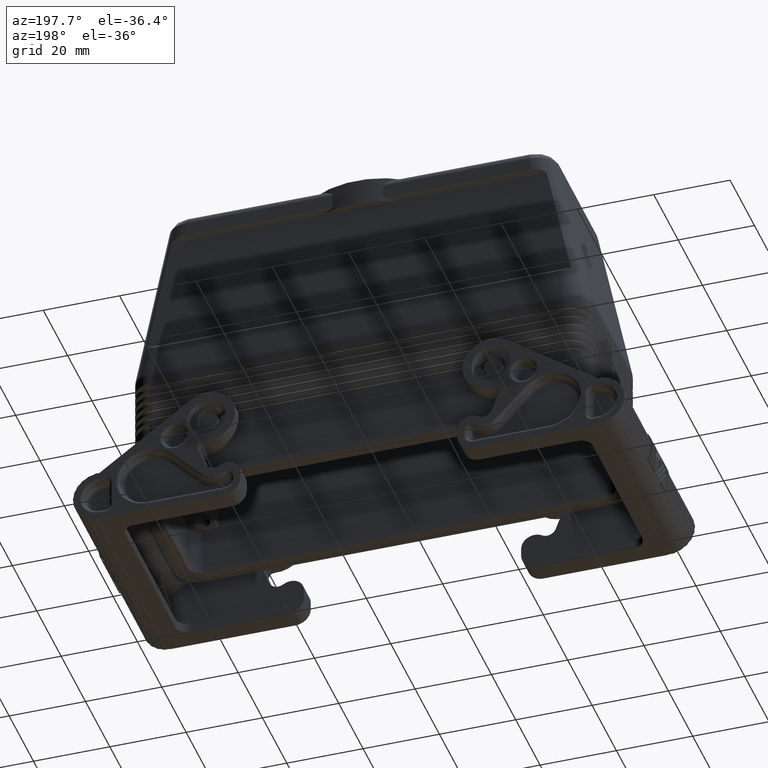
[diagram: clean part render]
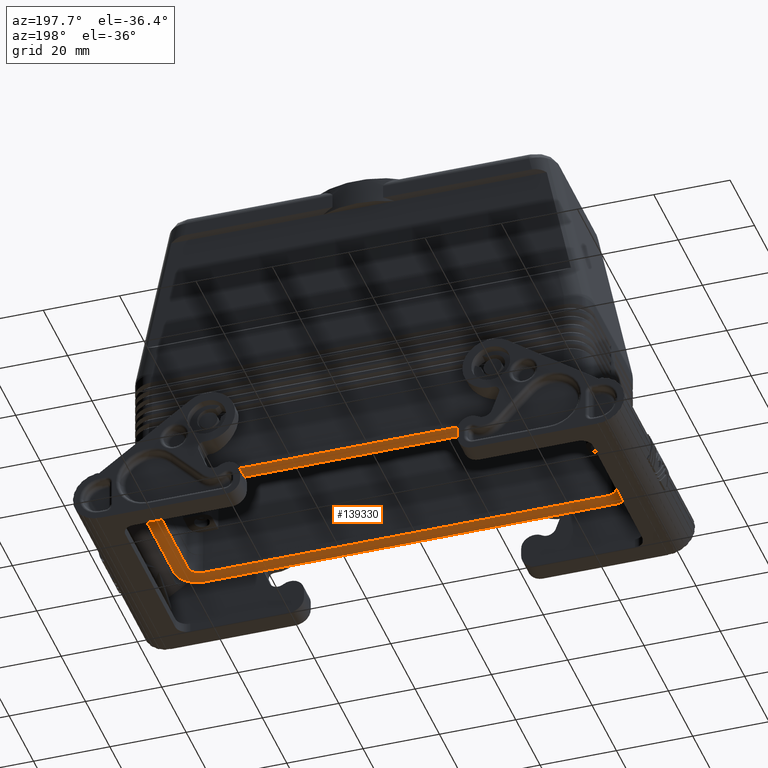
[diagram: same view with one face highlighted and labeled with its STEP entity id]
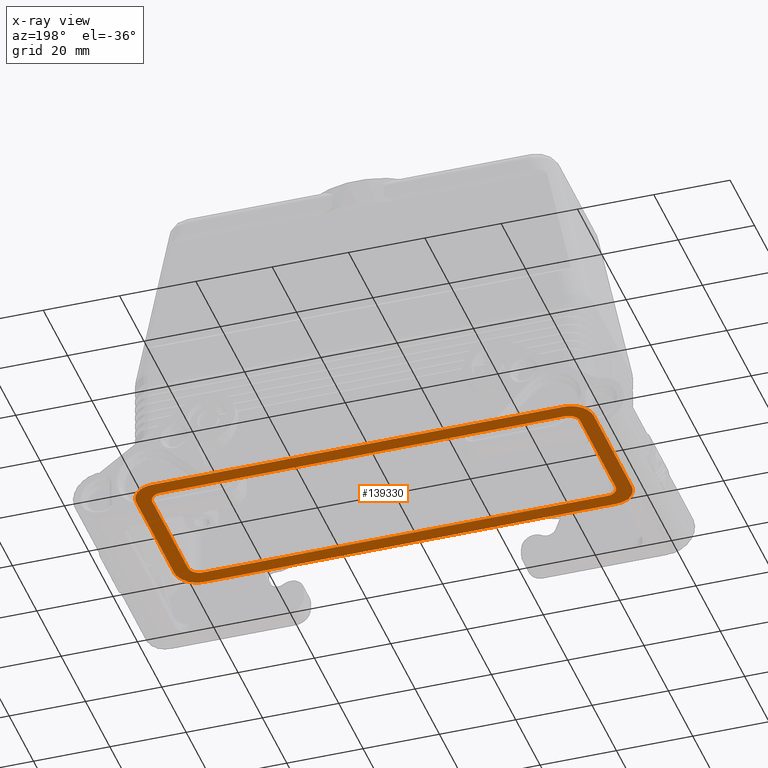
[diagram: x-ray of the same camera — body ghosted, the highlighted face saturated]
A machine part, auxiliary view. The second image highlights one B-rep face of the part: STEP entity #139330.
The next image is the same camera in x-ray: the body ghosted, the highlighted face saturated — about 13% of this face is hidden behind the body in this view.
In plain terms, the highlighted planar face has unit normal (0, 0, -1).
Its self-contained STEP definition (entity closure, byte-faithful):
#135690=CARTESIAN_POINT('',(58.1926406871193,-19.6926406871193,-0.5));
#135700=VERTEX_POINT('',#135690);
#135730=CARTESIAN_POINT('',(53.95,-15.45,-0.5));
#135740=DIRECTION('',(0.,0.,-1.));
#135750=DIRECTION('',(0.707106781186547,-0.707106781186548,0.));
#135760=AXIS2_PLACEMENT_3D('',#135730,#135740,#135750);
#135770=CIRCLE('',#135760,6.);
#135780=CARTESIAN_POINT('',(53.95,-21.451,-0.5));
#135790=VERTEX_POINT('',#135780);
#135800=EDGE_CURVE('',#135700,#135790,#135770,.T.);
#136050=CARTESIAN_POINT('',(0.,-21.45,-0.5));
#136060=DIRECTION('',(-1.,0.,0.));
#136070=VECTOR('',#136060,1.);
#136080=LINE('',#136050,#136070);
#136090=CARTESIAN_POINT('',(-53.9509998333472,-21.4499999166944,-0.5));
#136100=VERTEX_POINT('',#136090);
#136110=EDGE_CURVE('',#135790,#136100,#136080,.T.);
#136360=CARTESIAN_POINT('',(-53.95,-15.45,-0.5));
#136370=DIRECTION('',(0.,0.,1.));
#136380=DIRECTION('',(-0.707106781186547,-0.707106781186548,0.));
#136390=AXIS2_PLACEMENT_3D('',#136360,#136370,#136380);
#136400=CIRCLE('',#136390,6.);
#136410=CARTESIAN_POINT('',(-58.1926406871193,-19.6926406871193,-0.5));
#136420=VERTEX_POINT('',#136410);
#136430=EDGE_CURVE('',#136420,#136100,#136400,.T.);
#136710=CARTESIAN_POINT('',(-59.95,-15.45,-0.5));
#136720=VERTEX_POINT('',#136710);
#136750=CARTESIAN_POINT('',(-59.95,0.,-0.5));
#136760=DIRECTION('',(0.,-1.,0.));
#136770=VECTOR('',#136760,1.);
#136780=LINE('',#136750,#136770);
#136790=CARTESIAN_POINT('',(-59.9499999167222,15.4509996667222,-0.5));
#136800=VERTEX_POINT('',#136790);
#136810=EDGE_CURVE('',#136800,#136720,#136780,.T.);
#137090=CARTESIAN_POINT('',(-58.1926406871193,19.6926406871193,-0.5));
#137100=VERTEX_POINT('',#137090);
#137130=CARTESIAN_POINT('',(-53.95,15.45,-0.5));
#137140=DIRECTION('',(0.,0.,-1.));
#137150=DIRECTION('',(-0.707106781186547,0.707106781186548,0.));
#137160=AXIS2_PLACEMENT_3D('',#137130,#137140,#137150);
#137170=CIRCLE('',#137160,6.);
#137180=CARTESIAN_POINT('',(-53.9509998333472,21.4499999166944,-0.5));
#137190=VERTEX_POINT('',#137180);
#137200=EDGE_CURVE('',#137100,#137190,#137170,.T.);
#137450=CARTESIAN_POINT('',(0.,21.45,-0.5));
#137460=DIRECTION('',(-1.,0.,0.));
#137470=VECTOR('',#137460,1.);
#137480=LINE('',#137450,#137470);
#137490=CARTESIAN_POINT('',(53.9509998333472,21.4499999166944,-0.5));
#137500=VERTEX_POINT('',#137490);
#137510=EDGE_CURVE('',#137500,#137190,#137480,.T.);
#137760=CARTESIAN_POINT('',(53.95,15.45,-0.5));
#137770=DIRECTION('',(0.,0.,1.));
#137780=DIRECTION('',(0.707106781186547,0.707106781186548,0.));
#137790=AXIS2_PLACEMENT_3D('',#137760,#137770,#137780);
#137800=CIRCLE('',#137790,6.);
#137810=CARTESIAN_POINT('',(58.1926406871193,19.6926406871193,-0.5));
#137820=VERTEX_POINT('',#137810);
#137830=EDGE_CURVE('',#137820,#137500,#137800,.T.);
#138110=CARTESIAN_POINT('',(59.95,15.45,-0.5));
#138120=VERTEX_POINT('',#138110);
#138150=CARTESIAN_POINT('',(59.95,0.,-0.5));
#138160=DIRECTION('',(0.,1.,0.));
#138170=VECTOR('',#138160,1.);
#138180=LINE('',#138150,#138170);
#138190=CARTESIAN_POINT('',(59.951,-15.451,-0.5));
#138200=VERTEX_POINT('',#138190);
#138210=EDGE_CURVE('',#138200,#138120,#138180,.T.);
#138400=CARTESIAN_POINT('',(0.,-19.5,-0.5));
#138410=DIRECTION('',(0.,0.,-1.));
#138420=DIRECTION('',(1.,0.,0.));
#138430=AXIS2_PLACEMENT_3D('',#138400,#138410,#138420);
#138440=PLANE('',#138430);
#138450=CARTESIAN_POINT('',(-53.05,-14.55,-0.5));
#138460=DIRECTION('',(0.,0.,1.));
#138470=DIRECTION('',(-1.,0.,0.));
#138480=AXIS2_PLACEMENT_3D('',#138450,#138460,#138470);
#138490=CIRCLE('',#138480,3.);
#138500=CARTESIAN_POINT('',(-56.05,-14.55,-0.5));
#138510=VERTEX_POINT('',#138500);
#138520=CARTESIAN_POINT('',(-53.05,-17.55,-0.5));
#138530=VERTEX_POINT('',#138520);
#138540=EDGE_CURVE('',#138510,#138530,#138490,.T.);
#138550=ORIENTED_EDGE('',*,*,#138540,.T.);
#138560=CARTESIAN_POINT('',(-56.0500000000001,0.,-0.5));
#138570=DIRECTION('',(0.,-1.,0.));
#138580=VECTOR('',#138570,1.);
#138590=LINE('',#138560,#138580);
#138600=CARTESIAN_POINT('',(-56.05,14.55,-0.5));
#138610=VERTEX_POINT('',#138600);
#138620=EDGE_CURVE('',#138610,#138510,#138590,.T.);
#138630=ORIENTED_EDGE('',*,*,#138620,.T.);
#138640=CARTESIAN_POINT('',(-53.05,14.55,-0.5));
#138650=DIRECTION('',(0.,0.,1.));
#138660=DIRECTION('',(0.,1.,0.));
#138670=AXIS2_PLACEMENT_3D('',#138640,#138650,#138660);
#138680=CIRCLE('',#138670,3.);
#138690=CARTESIAN_POINT('',(-53.05,17.55,-0.5));
#138700=VERTEX_POINT('',#138690);
#138710=EDGE_CURVE('',#138700,#138610,#138680,.T.);
#138720=ORIENTED_EDGE('',*,*,#138710,.T.);
#138730=CARTESIAN_POINT('',(0.,17.55,-0.5));
#138740=DIRECTION('',(-1.,0.,0.));
#138750=VECTOR('',#138740,1.);
#138760=LINE('',#138730,#138750);
#138770=CARTESIAN_POINT('',(53.05,17.55,-0.5));
#138780=VERTEX_POINT('',#138770);
#138790=EDGE_CURVE('',#138780,#138700,#138760,.T.);
#138800=ORIENTED_EDGE('',*,*,#138790,.T.);
#138810=CARTESIAN_POINT('',(53.05,14.55,-0.5));
#138820=DIRECTION('',(0.,0.,1.));
#138830=DIRECTION('',(1.,0.,0.));
#138840=AXIS2_PLACEMENT_3D('',#138810,#138820,#138830);
#138850=CIRCLE('',#138840,3.);
#138860=CARTESIAN_POINT('',(56.05,14.55,-0.5));
#138870=VERTEX_POINT('',#138860);
#138880=EDGE_CURVE('',#138870,#138780,#138850,.T.);
#138890=ORIENTED_EDGE('',*,*,#138880,.T.);
#138900=CARTESIAN_POINT('',(56.05,0.,-0.5));
#138910=DIRECTION('',(0.,1.,0.));
#138920=VECTOR('',#138910,1.);
#138930=LINE('',#138900,#138920);
#138940=CARTESIAN_POINT('',(56.05,-14.55,-0.5));
#138950=VERTEX_POINT('',#138940);
#138960=EDGE_CURVE('',#138950,#138870,#138930,.T.);
#138970=ORIENTED_EDGE('',*,*,#138960,.T.);
#138980=CARTESIAN_POINT('',(53.05,-14.55,-0.5));
#138990=DIRECTION('',(0.,0.,1.));
#139000=DIRECTION('',(0.,-1.,0.));
#139010=AXIS2_PLACEMENT_3D('',#138980,#138990,#139000);
#139020=CIRCLE('',#139010,3.);
#139030=CARTESIAN_POINT('',(53.05,-17.55,-0.5));
#139040=VERTEX_POINT('',#139030);
#139050=EDGE_CURVE('',#139040,#138950,#139020,.T.);
#139060=ORIENTED_EDGE('',*,*,#139050,.T.);
#139070=CARTESIAN_POINT('',(0.,-17.55,-0.5));
#139080=DIRECTION('',(1.,0.,0.));
#139090=VECTOR('',#139080,1.);
#139100=LINE('',#139070,#139090);
#139110=EDGE_CURVE('',#138530,#139040,#139100,.T.);
#139120=ORIENTED_EDGE('',*,*,#139110,.T.);
#139130=EDGE_LOOP('',(#139120,#139060,#138970,#138890,#138800,#138720,
#138630,#138550));
#139140=FACE_BOUND('',#139130,.T.);
#139150=ORIENTED_EDGE('',*,*,#136110,.T.);
#139160=ORIENTED_EDGE('',*,*,#135800,.T.);
#139170=EDGE_CURVE('',#138200,#135700,#135770,.T.);
#139180=ORIENTED_EDGE('',*,*,#139170,.T.);
#139190=ORIENTED_EDGE('',*,*,#138210,.F.);
#139200=EDGE_CURVE('',#138120,#137820,#137800,.T.);
#139210=ORIENTED_EDGE('',*,*,#139200,.F.);
#139220=ORIENTED_EDGE('',*,*,#137830,.F.);
#139230=ORIENTED_EDGE('',*,*,#137510,.F.);
#139240=ORIENTED_EDGE('',*,*,#137200,.T.);
#139250=EDGE_CURVE('',#136800,#137100,#137170,.T.);
#139260=ORIENTED_EDGE('',*,*,#139250,.T.);
#139270=ORIENTED_EDGE('',*,*,#136810,.F.);
#139280=EDGE_CURVE('',#136720,#136420,#136400,.T.);
#139290=ORIENTED_EDGE('',*,*,#139280,.F.);
#139300=ORIENTED_EDGE('',*,*,#136430,.F.);
#139310=EDGE_LOOP('',(#139300,#139290,#139270,#139260,#139240,#139230,
#139220,#139210,#139190,#139180,#139160,#139150));
#139320=FACE_OUTER_BOUND('',#139310,.T.);
#139330=ADVANCED_FACE('',(#139140,#139320),#138440,.T.);